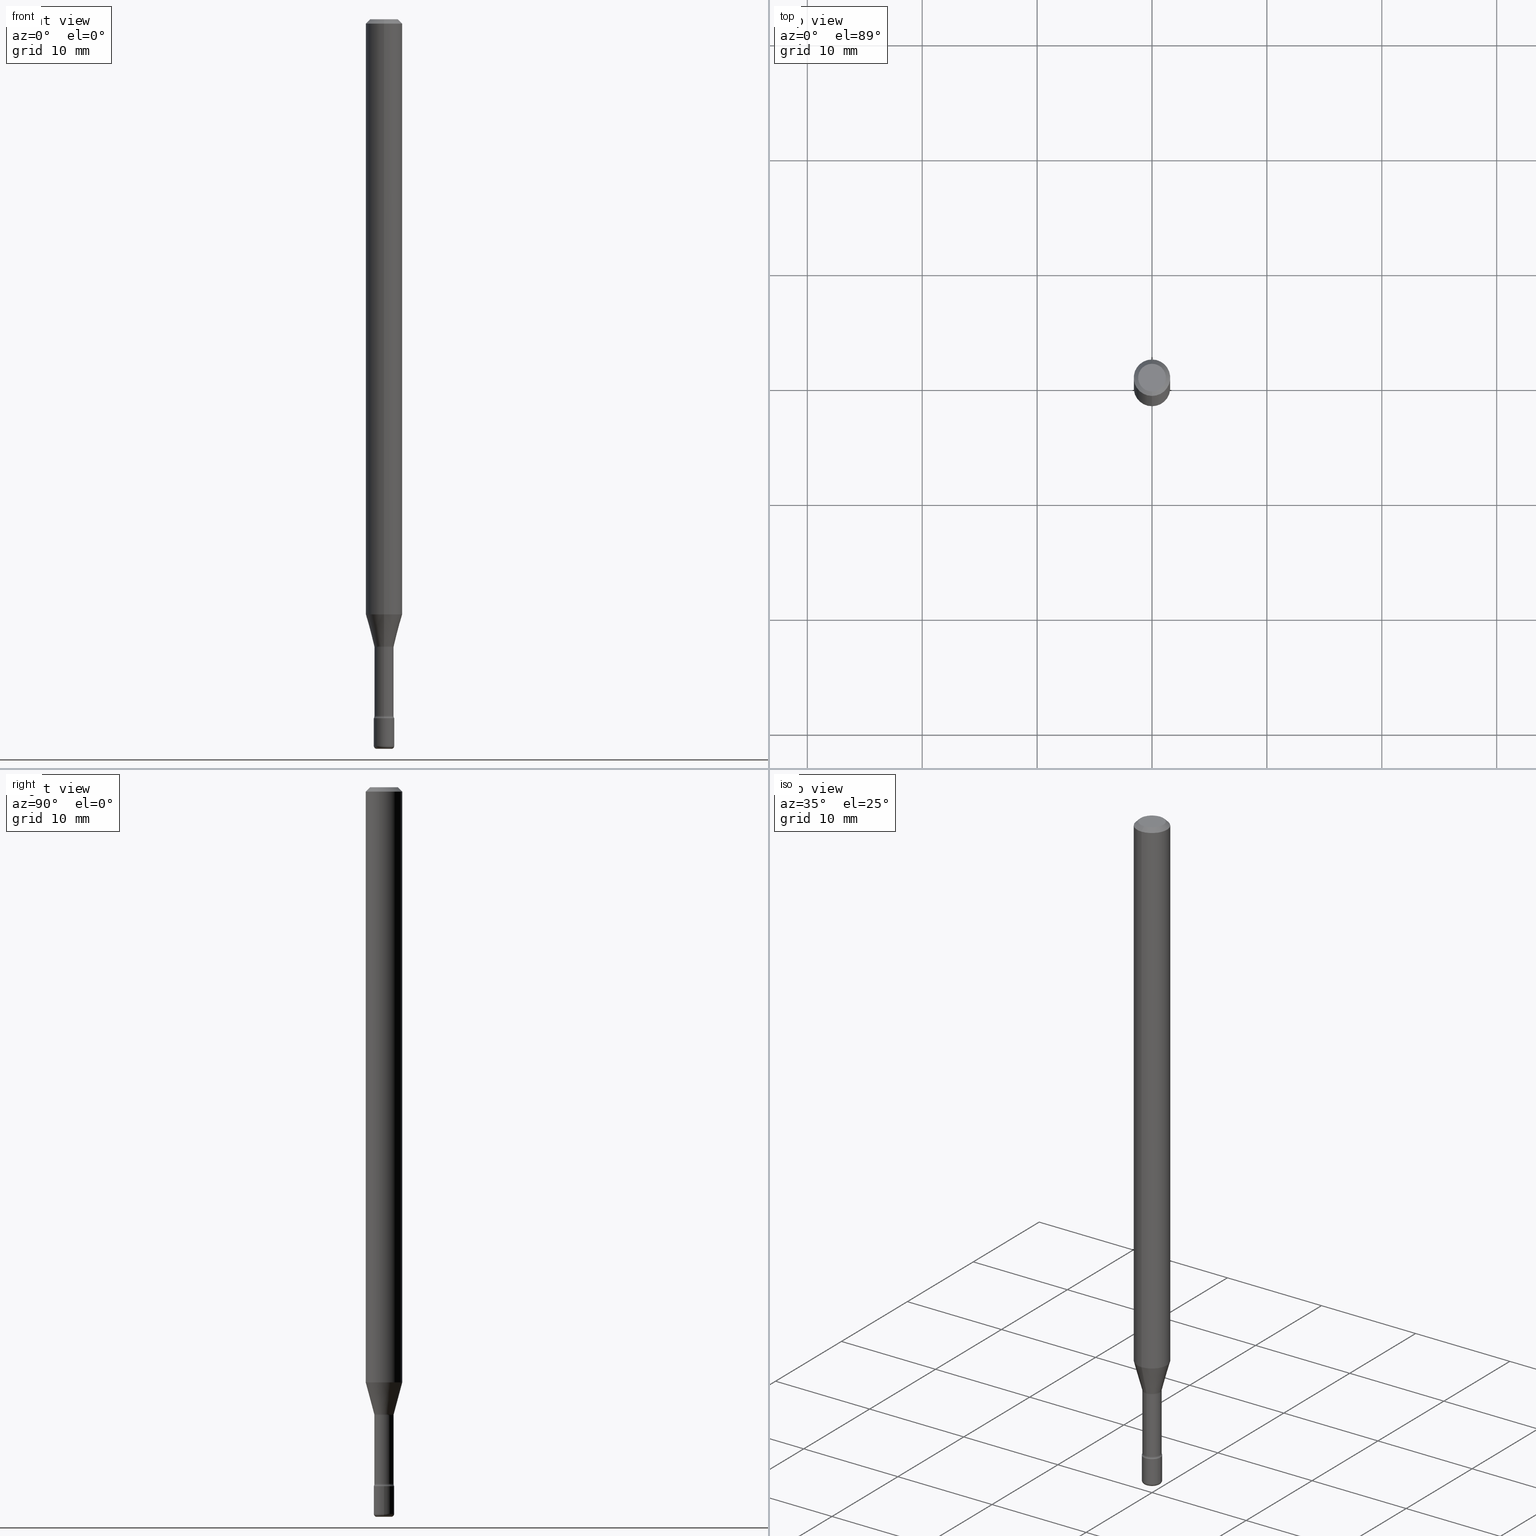
[diagram: canonical four-view strip — front | top / right | iso, engineering-drawing reading convention]
A machine part, canonical four-view strip (front | top / right | iso — engineering-drawing reading convention). The complete STEP part file that produces these views, byte-faithful:
ISO-10303-21;
HEADER;
FILE_DESCRIPTION (( 'STEP AP203' ),
    '1' );
FILE_NAME ('08935.STEP',
    '2024-03-06T20:11:30',
    ( '' ),
    ( '' ),
    'SwSTEP 2.0',
    'SolidWorks 2023',
    '' );
FILE_SCHEMA (( 'CONFIG_CONTROL_DESIGN' ));
ENDSEC;

DATA;
#1 = VERTEX_POINT ( 'NONE', #407 ) ;
#2 = CARTESIAN_POINT ( 'NONE',  ( 0.000000000000000000, 0.000000000000000000, 0.000000000000000000 ) ) ;
#3 = CARTESIAN_POINT ( 'NONE',  ( 2.444036937190778979E-16, 0.03499999999999164196, -2.395000000000000018 ) ) ;
#4 = ORIENTED_EDGE ( 'NONE', *, *, #253, .T. ) ;
#5 = CONICAL_SURFACE ( 'NONE', #372, 0.03341111260566397012, 0.2617993877991496299 ) ;
#6 = CIRCLE ( 'NONE', #59, 0.01500000000000002720 ) ;
#7 = DIRECTION ( 'NONE',  ( -6.982962677686265922E-15, -1.000000000000000000, 0.000000000000000000 ) ) ;
#8 = ADVANCED_FACE ( 'NONE', ( #412 ), #272, .T. ) ;
#9 = ORIENTED_EDGE ( 'NONE', *, *, #502, .F. ) ;
#10 = DIRECTION ( 'NONE',  ( -2.445468806185136597E-29, 3.491481338843145583E-15, 1.000000000000000000 ) ) ;
#11 = ORIENTED_EDGE ( 'NONE', *, *, #89, .T. ) ;
#12 = AXIS2_PLACEMENT_3D ( 'NONE', #313, #418, #538 ) ;
#13 = PERSON_AND_ORGANIZATION_ROLE ( 'classification_officer' ) ;
#14 = TOROIDAL_SURFACE ( 'NONE', #257, 0.04789999999999999813, 0.01500000000000002547 ) ;
#15 = CARTESIAN_POINT ( 'NONE',  ( -4.364351673553912750E-16, -0.06250000000000005551, -0.01499999999999981036 ) ) ;
#16 = EDGE_CURVE ( 'NONE', #1, #203, #183, .T. ) ;
#17 = ADVANCED_FACE ( 'NONE', ( #325 ), #500, .T. ) ;
#18 = PERSON_AND_ORGANIZATION_ROLE ( 'creator' ) ;
#19 = ORIENTED_EDGE ( 'NONE', *, *, #294, .T. ) ;
#20 = ADVANCED_FACE ( 'NONE', ( #50 ), #5, .T. ) ;
#21 = DATE_TIME_ROLE ( 'creation_date' ) ;
#22 = DIRECTION ( 'NONE',  ( -2.445361929537154917E-29, 3.491634392286096321E-15, 1.000000000000000000 ) ) ;
#23 = DIRECTION ( 'NONE',  ( -6.982962677686265922E-15, -1.000000000000000000, 0.000000000000000000 ) ) ;
#24 = PERSON_AND_ORGANIZATION ( #71, #530 ) ;
#25 = AXIS2_PLACEMENT_3D ( 'NONE', #555, #168, #77 ) ;
#26 = CARTESIAN_POINT ( 'NONE',  ( 5.252863624994821305E-29, -7.500353657052325597E-15, -2.148092501787273179 ) ) ;
#27 = DESIGN_CONTEXT ( 'detailed design', #539, 'design' ) ;
#28 = EDGE_CURVE ( 'NONE', #287, #149, #38, .T. ) ;
#29 = DIRECTION ( 'NONE',  ( 4.937700262164548831E-15, 0.7071067811865452413, -0.7071067811865497932 ) ) ;
#30 = CARTESIAN_POINT ( 'NONE',  ( 2.486899575160932672E-16, 0.03499999999999160033, -2.395000000000000018 ) ) ;
#31 = ORIENTED_EDGE ( 'NONE', *, *, #471, .T. ) ;
#32 = CARTESIAN_POINT ( 'NONE',  ( -0.02500000000000000139, -8.498083119685618084E-15, -2.500000000000000000 ) ) ;
#33 = EDGE_LOOP ( 'NONE', ( #19, #535 ) ) ;
#34 = PLANE ( 'NONE',  #293 ) ;
#35 = EDGE_LOOP ( 'NONE', ( #185, #495, #397, #9 ) ) ;
#36 = CC_DESIGN_PERSON_AND_ORGANIZATION_ASSIGNMENT ( #116, #194, ( #351 ) ) ;
#37 = LINE ( 'NONE', #558, #134 ) ;
#38 = CIRCLE ( 'NONE', #323, 0.03290000000000008890 ) ;
#39 = CIRCLE ( 'NONE', #92, 0.04749999999999998668 ) ;
#40 = CARTESIAN_POINT ( 'NONE',  ( 1.745740669422178045E-16, 0.02499999999999127226, -2.500000000000000000 ) ) ;
#41 = ADVANCED_FACE ( 'NONE', ( #78 ), #331, .T. ) ;
#42 = DIRECTION ( 'NONE',  ( -2.445361929537154917E-29, 3.491634392286096321E-15, 1.000000000000000000 ) ) ;
#43 = DIRECTION ( 'NONE',  ( -2.445361929537154917E-29, 3.491634392286096321E-15, 1.000000000000000000 ) ) ;
#44 = PERSON_AND_ORGANIZATION_ROLE ( 'design_owner' ) ;
#45 = EDGE_CURVE ( 'NONE', #1, #173, #563, .T. ) ;
#46 = VECTOR ( 'NONE', #426, 39.37007874015748143 ) ;
#47 = LOCAL_TIME ( 15, 11, 30.00000000000000000, #315 ) ;
#48 = DIRECTION ( 'NONE',  ( -2.445361929537154917E-29, 3.491634392286096321E-15, 1.000000000000000000 ) ) ;
#49 = ORIENTED_EDGE ( 'NONE', *, *, #102, .F. ) ;
#50 = FACE_OUTER_BOUND ( 'NONE', #474, .T. ) ;
#51 = CARTESIAN_POINT ( 'NONE',  ( -1.169113584055446105E-44, 1.669184350826100908E-30, 4.780733988912460139E-16 ) ) ;
#52 = ORIENTED_EDGE ( 'NONE', *, *, #452, .F. ) ;
#53 = CARTESIAN_POINT ( 'NONE',  ( 4.987392185572634863E-29, -7.121297617592497891E-15, -2.039531296095961732 ) ) ;
#54 = ADVANCED_FACE ( 'NONE', ( #456 ), #205, .F. ) ;
#55 = CARTESIAN_POINT ( 'NONE',  ( 3.403499704291464501E-16, 0.04789999999999168534, -2.387345589506696619 ) ) ;
#56 = DIRECTION ( 'NONE',  ( 1.000000000000000000, -7.105427357601001070E-15, 4.926317382906172649E-29 ) ) ;
#57 = CARTESIAN_POINT ( 'NONE',  ( -4.364351673553916201E-16, -0.06250000000000000000, 6.963005484091270833E-16 ) ) ;
#58 = CLOSED_SHELL ( 'NONE', ( #506, #17, #107, #41, #130, #20, #187, #8, #268, #54, #164, #211, #283, #262 ) ) ;
#59 = AXIS2_PLACEMENT_3D ( 'NONE', #403, #56, #93 ) ;
#60 = ORIENTED_EDGE ( 'NONE', *, *, #488, .F. ) ;
#61 = EDGE_LOOP ( 'NONE', ( #154, #244, #532, #198 ) ) ;
#62 = DIRECTION ( 'NONE',  ( -6.982962677686265922E-15, -1.000000000000000000, 0.000000000000000000 ) ) ;
#63 = CIRCLE ( 'NONE', #468, 0.01499999999999992485 ) ;
#64 = DIRECTION ( 'NONE',  ( -2.445361929537154917E-29, 3.491634392286096321E-15, 1.000000000000000000 ) ) ;
#65 = ORIENTED_EDGE ( 'NONE', *, *, #398, .T. ) ;
#66 = CARTESIAN_POINT ( 'NONE',  ( 4.440892098501128074E-16, 0.06249999999999995837, -0.01500000000000024578 ) ) ;
#67 = VERTEX_POINT ( 'NONE', #66 ) ;
#68 = ORIENTED_EDGE ( 'NONE', *, *, #215, .F. ) ;
#69 = ORIENTED_EDGE ( 'NONE', *, *, #359, .T. ) ;
#70 = CYLINDRICAL_SURFACE ( 'NONE', #267, 0.06250000000000000000 ) ;
#71 = PERSON ( 'UNSPECIFIED', 'UNSPECIFIED', 'UNSPECIFIED', ('UNSPECIFIED'), ('UNSPECIFIED'), ('UNSPECIFIED') ) ;
#72 = CARTESIAN_POINT ( 'NONE',  ( 3.668042894305739311E-31, -5.237451588429154292E-17, -0.01500000000000002720 ) ) ;
#73 = CIRCLE ( 'NONE', #393, 0.03500000000000000333 ) ;
#74 = CC_DESIGN_PERSON_AND_ORGANIZATION_ASSIGNMENT ( #406, #44, ( #318 ) ) ;
#75 = DIRECTION ( 'NONE',  ( -2.445361929537154917E-29, 3.491634392286096321E-15, 1.000000000000000000 ) ) ;
#76 = AXIS2_PLACEMENT_3D ( 'NONE', #201, #233, #62 ) ;
#77 = DIRECTION ( 'NONE',  ( 1.000000000000000000, -6.982962677686276966E-15, 0.000000000000000000 ) ) ;
#78 = FACE_OUTER_BOUND ( 'NONE', #556, .T. ) ;
#79 = CARTESIAN_POINT ( 'NONE',  ( 6.617399431615516844E-46, -9.463332413969183730E-32, -2.708191715859933263E-17 ) ) ;
#80 = EDGE_LOOP ( 'NONE', ( #362, #355, #249, #334 ) ) ;
#81 = DIRECTION ( 'NONE',  ( -2.445468806185136597E-29, 3.491481338843145583E-15, 1.000000000000000000 ) ) ;
#82 = AXIS2_PLACEMENT_3D ( 'NONE', #513, #376, #124 ) ;
#83 = CIRCLE ( 'NONE', #25, 0.03500000000000000333 ) ;
#84 = ORIENTED_EDGE ( 'NONE', *, *, #279, .T. ) ;
#85 = CARTESIAN_POINT ( 'NONE',  ( -1.169113584055446105E-44, 1.669184350826100908E-30, 4.780733988912460139E-16 ) ) ;
#86 = VERTEX_POINT ( 'NONE', #544 ) ;
#87 = COORDINATED_UNIVERSAL_TIME_OFFSET ( 5, 0, .BEHIND. ) ;
#88 = APPROVAL ( #150, 'UNSPECIFIED' ) ;
#89 = EDGE_CURVE ( 'NONE', #287, #462, #63, .T. ) ;
#90 = ORIENTED_EDGE ( 'NONE', *, *, #204, .F. ) ;
#91 = AXIS2_PLACEMENT_3D ( 'NONE', #559, #172, #23 ) ;
#92 = AXIS2_PLACEMENT_3D ( 'NONE', #79, #75, #517 ) ;
#93 = DIRECTION ( 'NONE',  ( 7.105427357601001859E-15, 1.000000000000000000, 0.000000000000000000 ) ) ;
#94 = ORIENTED_EDGE ( 'NONE', *, *, #215, .T. ) ;
#95 = DIRECTION ( 'NONE',  ( -6.982962677686265922E-15, -1.000000000000000000, 3.491634392286096321E-15 ) ) ;
#96 = VERTEX_POINT ( 'NONE', #491 ) ;
#97 = CARTESIAN_POINT ( 'NONE',  ( -3.344839122611139354E-16, -0.04790000000000835256, -2.387345589506696175 ) ) ;
#98 = CARTESIAN_POINT ( 'NONE',  ( -4.364351673553420205E-16, -0.06250000000000714706, -2.039531296095961288 ) ) ;
#99 = DIRECTION ( 'NONE',  ( -2.445468806185136597E-29, 3.491481338843145583E-15, 1.000000000000000000 ) ) ;
#100 = ORIENTED_EDGE ( 'NONE', *, *, #105, .T. ) ;
#101 = MECHANICAL_CONTEXT ( 'NONE', #344, 'mechanical' ) ;
#102 = EDGE_CURVE ( 'NONE', #96, #137, #457, .T. ) ;
#103 = CONICAL_SURFACE ( 'NONE', #494, 0.06250000000000000000, 0.7853981633974485010 ) ;
#104 = FACE_OUTER_BOUND ( 'NONE', #298, .T. ) ;
#105 = EDGE_CURVE ( 'NONE', #173, #217, #352, .T. ) ;
#106 = ORIENTED_EDGE ( 'NONE', *, *, #479, .T. ) ;
#107 = ADVANCED_FACE ( 'NONE', ( #176 ), #476, .F. ) ;
#108 = ORIENTED_EDGE ( 'NONE', *, *, #271, .F. ) ;
#109 = AXIS2_PLACEMENT_3D ( 'NONE', #115, #10, #367 ) ;
#110 = DATE_AND_TIME ( #288, #566 ) ;
#111 = AXIS2_PLACEMENT_3D ( 'NONE', #53, #354, #442 ) ;
#112 = ORIENTED_EDGE ( 'NONE', *, *, #498, .F. ) ;
#113 = CARTESIAN_POINT ( 'NONE',  ( -1.169113584055446105E-44, 1.669184350826100908E-30, 4.780733988912460139E-16 ) ) ;
#114 = DIRECTION ( 'NONE',  ( -2.445361929537154917E-29, 3.491634392286096321E-15, 1.000000000000000000 ) ) ;
#115 = CARTESIAN_POINT ( 'NONE',  ( 0.000000000000000000, 0.000000000000000000, 0.000000000000000000 ) ) ;
#116 = PERSON_AND_ORGANIZATION ( #71, #530 ) ;
#117 = EDGE_LOOP ( 'NONE', ( #296, #328, #466, #90 ) ) ;
#118 = DIRECTION ( 'NONE',  ( -6.982962677686265133E-15, -1.000000000000000000, 3.491634392286094348E-15 ) ) ;
#119 = CARTESIAN_POINT ( 'NONE',  ( -2.297394720958204179E-16, -0.03290000000000842945, -2.387345589506696619 ) ) ;
#120 = DIRECTION ( 'NONE',  ( 1.000000000000000000, -6.982962677686276966E-15, 0.000000000000000000 ) ) ;
#121 = TOROIDAL_SURFACE ( 'NONE', #448, 0.02500000000000000139, 0.01000000000000008521 ) ;
#122 = CARTESIAN_POINT ( 'NONE',  ( 5.837924017228111976E-29, -8.335737966594106856E-15, -2.387345589506696619 ) ) ;
#123 = ORIENTED_EDGE ( 'NONE', *, *, #452, .T. ) ;
#124 = DIRECTION ( 'NONE',  ( 6.982962677686265922E-15, 1.000000000000000000, -3.491634392286096321E-15 ) ) ;
#125 = FACE_OUTER_BOUND ( 'NONE', #80, .T. ) ;
#126 = ORIENTED_EDGE ( 'NONE', *, *, #527, .F. ) ;
#127 = EDGE_CURVE ( 'NONE', #285, #86, #316, .T. ) ;
#128 = CARTESIAN_POINT ( 'NONE',  ( 5.838179168722291637E-29, -8.335372575132119928E-15, -2.387345589506696619 ) ) ;
#129 = ADVANCED_FACE ( 'NONE', ( #528 ), #135, .T. ) ;
#130 = ADVANCED_FACE ( 'NONE', ( #264 ), #70, .T. ) ;
#131 = FACE_OUTER_BOUND ( 'NONE', #61, .T. ) ;
#132 = DIRECTION ( 'NONE',  ( -2.445361929537154917E-29, 3.491634392286096321E-15, 1.000000000000000000 ) ) ;
#133 = CIRCLE ( 'NONE', #216, 0.01500000000000002720 ) ;
#134 = VECTOR ( 'NONE', #132, 39.37007874015748143 ) ;
#135 = PLANE ( 'NONE',  #550 ) ;
#136 = PERSON_AND_ORGANIZATION ( #71, #530 ) ;
#137 = VERTEX_POINT ( 'NONE', #32 ) ;
#138 = CARTESIAN_POINT ( 'NONE',  ( 2.374002335562249758E-16, 0.03341111260565646918, -2.148092501787273179 ) ) ;
#139 =( NAMED_UNIT ( * ) PLANE_ANGLE_UNIT ( ) SI_UNIT ( $, .RADIAN. ) );
#140 = DIRECTION ( 'NONE',  ( 1.000000000000000000, -7.105427357601001070E-15, 4.926317382906172649E-29 ) ) ;
#141 = DIRECTION ( 'NONE',  ( -6.982962677686265922E-15, -1.000000000000000000, 3.491634392286095926E-15 ) ) ;
#142 = DIRECTION ( 'NONE',  ( -1.000000000000000000, 6.982962677686265922E-15, -4.883557194083112340E-29 ) ) ;
#143 = VECTOR ( 'NONE', #22, 39.37007874015748143 ) ;
#144 = FACE_OUTER_BOUND ( 'NONE', #516, .T. ) ;
#145 = EDGE_LOOP ( 'NONE', ( #49, #503 ) ) ;
#146 = CARTESIAN_POINT ( 'NONE',  ( 6.089217327400989947E-29, -8.693788533719431716E-15, -2.489999999999999769 ) ) ;
#147 = CARTESIAN_POINT ( 'NONE',  ( -4.287811248607203282E-16, -0.06250000000000005551, -0.01499999999999981036 ) ) ;
#148 = DIRECTION ( 'NONE',  ( -2.445361929537154917E-29, 3.491634392286096321E-15, 1.000000000000000000 ) ) ;
#149 = VERTEX_POINT ( 'NONE', #119 ) ;
#150 = APPROVAL_STATUS ( 'not_yet_approved' ) ;
#151 = CONICAL_SURFACE ( 'NONE', #91, 0.03341111260566397012, 0.2617993877991496299 ) ;
#152 = AXIS2_PLACEMENT_3D ( 'NONE', #336, #209, #478 ) ;
#153 = EDGE_LOOP ( 'NONE', ( #557, #265, #373, #484 ) ) ;
#154 = ORIENTED_EDGE ( 'NONE', *, *, #127, .T. ) ;
#155 = UNCERTAINTY_MEASURE_WITH_UNIT (LENGTH_MEASURE( 1.000000000000000082E-05 ), #308, 'distance_accuracy_value', 'NONE');
#156 = DIRECTION ( 'NONE',  ( -6.982962677686265922E-15, -1.000000000000000000, 3.483106191921935554E-15 ) ) ;
#157 = ORIENTED_EDGE ( 'NONE', *, *, #238, .T. ) ;
#158 = DATE_AND_TIME ( #231, #199 ) ;
#159 = APPROVAL_ROLE ( '' ) ;
#160 = EDGE_CURVE ( 'NONE', #462, #381, #73, .T. ) ;
#161 = CARTESIAN_POINT ( 'NONE',  ( 3.407447217031687684E-16, 0.03341111260565646918, -2.148092501787273179 ) ) ;
#162 = PERSON_AND_ORGANIZATION ( #71, #530 ) ;
#163 = CIRCLE ( 'NONE', #225, 0.03500000000000000333 ) ;
#164 = ADVANCED_FACE ( 'NONE', ( #391 ), #349, .F. ) ;
#165 = DIRECTION ( 'NONE',  ( -2.445361929537154917E-29, 3.491634392286096321E-15, 1.000000000000000000 ) ) ;
#166 = EDGE_CURVE ( 'NONE', #96, #285, #511, .T. ) ;
#167 = AXIS2_PLACEMENT_3D ( 'NONE', #460, #545, #156 ) ;
#168 = DIRECTION ( 'NONE',  ( -2.445468806185136597E-29, 3.491481338843145583E-15, 1.000000000000000000 ) ) ;
#169 = ORIENTED_EDGE ( 'NONE', *, *, #305, .F. ) ;
#170 = AXIS2_PLACEMENT_3D ( 'NONE', #435, #341, #465 ) ;
#171 = DIRECTION ( 'NONE',  ( 1.000000000000000000, -6.982962677686265922E-15, 4.876176775795936353E-29 ) ) ;
#172 = DIRECTION ( 'NONE',  ( -2.445361929537154917E-29, 3.491634392286096321E-15, 1.000000000000000000 ) ) ;
#173 = VERTEX_POINT ( 'NONE', #161 ) ;
#174 = DIRECTION ( 'NONE',  ( -6.982962677686265922E-15, -1.000000000000000000, 4.370956789862821150E-15 ) ) ;
#175 = PRODUCT_DEFINITION ( 'UNKNOWN', '', #351, #27 ) ;
#176 = FACE_OUTER_BOUND ( 'NONE', #346, .T. ) ;
#177 = CARTESIAN_POINT ( 'NONE',  ( -2.297394720958784485E-16, -0.03290000000000004726, 5.929481703974587272E-16 ) ) ;
#178 = AXIS2_PLACEMENT_3D ( 'NONE', #434, #261, #174 ) ;
#179 = DIRECTION ( 'NONE',  ( -6.982962677686265133E-15, -1.000000000000000000, 3.491634392286096321E-15 ) ) ;
#180 = DIRECTION ( 'NONE',  ( -6.982962677686265922E-15, -1.000000000000000000, 3.491634392286096321E-15 ) ) ;
#181 = CIRCLE ( 'NONE', #76, 0.03341111260566397012 ) ;
#182 = AXIS2_PLACEMENT_3D ( 'NONE', #410, #360, #188 ) ;
#183 = LINE ( 'NONE', #353, #529 ) ;
#184 = VERTEX_POINT ( 'NONE', #365 ) ;
#185 = ORIENTED_EDGE ( 'NONE', *, *, #105, .F. ) ;
#186 = CARTESIAN_POINT ( 'NONE',  ( -3.344839122611194574E-16, -0.04790000000000750602, -2.151974787463811101 ) ) ;
#187 = ADVANCED_FACE ( 'NONE', ( #387 ), #151, .T. ) ;
#188 = DIRECTION ( 'NONE',  ( 1.000000000000000000, -6.982962677686254878E-15, 0.000000000000000000 ) ) ;
#189 = AXIS2_PLACEMENT_3D ( 'NONE', #303, #259, #480 ) ;
#190 = VECTOR ( 'NONE', #307, 39.37007874015748143 ) ;
#191 = MANIFOLD_SOLID_BREP ( 'Body-Move/Copy2[2]', #58 ) ;
#192 = EDGE_LOOP ( 'NONE', ( #379, #368, #370, #330 ) ) ;
#193 = CARTESIAN_POINT ( 'NONE',  ( -1.169113584055446105E-44, 1.669184350826100908E-30, 4.780733988912460139E-16 ) ) ;
#194 = PERSON_AND_ORGANIZATION_ROLE ( 'design_supplier' ) ;
#195 = ORIENTED_EDGE ( 'NONE', *, *, #166, .T. ) ;
#196 = PERSON_AND_ORGANIZATION_ROLE ( 'creator' ) ;
#197 = EDGE_CURVE ( 'NONE', #67, #252, #214, .T. ) ;
#198 = ORIENTED_EDGE ( 'NONE', *, *, #359, .F. ) ;
#199 = LOCAL_TIME ( 15, 11, 30.00000000000000000, #87 ) ;
#200 = ORIENTED_EDGE ( 'NONE', *, *, #197, .T. ) ;
#201 = CARTESIAN_POINT ( 'NONE',  ( 5.252863624994821305E-29, -7.500353657052325597E-15, -2.148092501787273179 ) ) ;
#202 = CARTESIAN_POINT ( 'NONE',  ( 2.412292587906125932E-16, 0.03289999999999175528, -2.387345589506696619 ) ) ;
#203 = VERTEX_POINT ( 'NONE', #98 ) ;
#204 = EDGE_CURVE ( 'NONE', #203, #252, #274, .T. ) ;
#205 = PLANE ( 'NONE',  #82 ) ;
#206 = DIRECTION ( 'NONE',  ( 2.438088387897960049E-29, -3.491481338843145188E-15, -1.000000000000000000 ) ) ;
#207 = EDGE_LOOP ( 'NONE', ( #112, #508, #157, #200 ) ) ;
#208 = CARTESIAN_POINT ( 'NONE',  ( 5.262357218587814766E-29, -7.513909179241206532E-15, -2.151974787463811101 ) ) ;
#209 = DIRECTION ( 'NONE',  ( -2.445468806185136597E-29, 3.491481338843145583E-15, 1.000000000000000000 ) ) ;
#210 = LINE ( 'NONE', #177, #309 ) ;
#211 = ADVANCED_FACE ( 'NONE', ( #429 ), #540, .F. ) ;
#212 = DIRECTION ( 'NONE',  ( -6.982962677686265133E-15, -1.000000000000000000, 3.491634392286096321E-15 ) ) ;
#213 = DIRECTION ( 'NONE',  ( -6.982962677686265922E-15, -1.000000000000000000, 0.000000000000000000 ) ) ;
#214 = CIRCLE ( 'NONE', #348, 0.06250000000000000000 ) ;
#215 = EDGE_CURVE ( 'NONE', #287, #184, #390, .T. ) ;
#216 = AXIS2_PLACEMENT_3D ( 'NONE', #186, #142, #492 ) ;
#217 = VERTEX_POINT ( 'NONE', #510 ) ;
#218 = DIRECTION ( 'NONE',  ( 1.000000000000000000, -6.982962677686259611E-15, 4.883557194083110659E-29 ) ) ;
#219 = ADVANCED_FACE ( 'NONE', ( #230 ), #413, .T. ) ;
#220 = DIRECTION ( 'NONE',  ( 1.000000000000000000, -6.982962677686254878E-15, 0.000000000000000000 ) ) ;
#221 = DIRECTION ( 'NONE',  ( -6.982962677686265133E-15, -1.000000000000000000, 0.000000000000000000 ) ) ;
#222 = EDGE_CURVE ( 'NONE', #252, #67, #431, .T. ) ;
#223 =( NAMED_UNIT ( * ) SI_UNIT ( $, .STERADIAN. ) SOLID_ANGLE_UNIT ( ) );
#224 = AXIS2_PLACEMENT_3D ( 'NONE', #311, #489, #95 ) ;
#225 = AXIS2_PLACEMENT_3D ( 'NONE', #472, #386, #120 ) ;
#226 = EDGE_LOOP ( 'NONE', ( #65, #123 ) ) ;
#227 = DIRECTION ( 'NONE',  ( -6.982962677686266711E-15, -1.000000000000000000, 0.000000000000000000 ) ) ;
#228 = PRODUCT_RELATED_PRODUCT_CATEGORY ( 'detail', '', ( #318 ) ) ;
#229 = DATE_AND_TIME ( #501, #286 ) ;
#230 = FACE_OUTER_BOUND ( 'NONE', #493, .T. ) ;
#231 = CALENDAR_DATE ( 2024, 6, 3 ) ;
#232 = CARTESIAN_POINT ( 'NONE',  ( 5.837924017228111976E-29, -8.335737966594106856E-15, -2.387345589506696619 ) ) ;
#233 = DIRECTION ( 'NONE',  ( -2.445361929537154917E-29, 3.491634392286096321E-15, 1.000000000000000000 ) ) ;
#234 = VECTOR ( 'NONE', #29, 39.37007874015748143 ) ;
#235 = CIRCLE ( 'NONE', #541, 0.01499999999999992485 ) ;
#236 = APPROVAL_DATE_TIME ( #158, #496 ) ;
#237 = EDGE_LOOP ( 'NONE', ( #84, #94, #428, #523 ) ) ;
#238 = EDGE_CURVE ( 'NONE', #250, #67, #377, .T. ) ;
#239 = DATE_AND_TIME ( #420, #542 ) ;
#240 = ORIENTED_EDGE ( 'NONE', *, *, #399, .F. ) ;
#241 = EDGE_CURVE ( 'NONE', #173, #1, #181, .T. ) ;
#242 = EDGE_LOOP ( 'NONE', ( #108, #343 ) ) ;
#243 = DIRECTION ( 'NONE',  ( -6.982962677686265133E-15, -1.000000000000000000, 3.491634392286094348E-15 ) ) ;
#244 = ORIENTED_EDGE ( 'NONE', *, *, #388, .T. ) ;
#245 = CIRCLE ( 'NONE', #449, 0.04749999999999998668 ) ;
#246 = SECURITY_CLASSIFICATION ( '', '', #414 ) ;
#247 = CARTESIAN_POINT ( 'NONE',  ( 0.000000000000000000, 0.000000000000000000, 0.000000000000000000 ) ) ;
#248 = DIRECTION ( 'NONE',  ( -2.445468806185136877E-29, 3.491481338843145188E-15, 1.000000000000000000 ) ) ;
#249 = ORIENTED_EDGE ( 'NONE', *, *, #127, .F. ) ;
#250 = VERTEX_POINT ( 'NONE', #543 ) ;
#251 = DIRECTION ( 'NONE',  ( -6.982962677686265133E-15, -1.000000000000000000, 3.491634392286096715E-15 ) ) ;
#252 = VERTEX_POINT ( 'NONE', #15 ) ;
#253 = EDGE_CURVE ( 'NONE', #137, #96, #269, .T. ) ;
#254 = CLOSED_SHELL ( 'NONE', ( #374, #423, #129, #409, #572, #219 ) ) ;
#255 = LINE ( 'NONE', #519, #332 ) ;
#256 = DIRECTION ( 'NONE',  ( -2.445361929537154917E-29, 3.491634392286096321E-15, 1.000000000000000000 ) ) ;
#257 = AXIS2_PLACEMENT_3D ( 'NONE', #467, #64, #212 ) ;
#258 = APPROVAL_PERSON_ORGANIZATION ( #369, #289, #319 ) ;
#259 = DIRECTION ( 'NONE',  ( 2.445361929537154917E-29, -3.491634392286096321E-15, -1.000000000000000000 ) ) ;
#260 = ORIENTED_EDGE ( 'NONE', *, *, #45, .F. ) ;
#261 = DIRECTION ( 'NONE',  ( -2.445361929537154917E-29, 3.491634392286096321E-15, 1.000000000000000000 ) ) ;
#262 = ADVANCED_FACE ( 'NONE', ( #104 ), #14, .F. ) ;
#263 = DIRECTION ( 'NONE',  ( -6.982962677686266711E-15, -1.000000000000000000, 0.000000000000000000 ) ) ;
#264 = FACE_OUTER_BOUND ( 'NONE', #117, .T. ) ;
#265 = ORIENTED_EDGE ( 'NONE', *, *, #527, .T. ) ;
#266 = DIRECTION ( 'NONE',  ( -2.445468806185136597E-29, 3.491481338843145583E-15, 1.000000000000000000 ) ) ;
#267 = AXIS2_PLACEMENT_3D ( 'NONE', #113, #504, #375 ) ;
#268 = ADVANCED_FACE ( 'NONE', ( #320 ), #103, .T. ) ;
#269 = CIRCLE ( 'NONE', #182, 0.02500000000000000139 ) ;
#270 = DIRECTION ( 'NONE',  ( -2.445468806185136597E-29, 3.491481338843145583E-15, 1.000000000000000000 ) ) ;
#271 = EDGE_CURVE ( 'NONE', #381, #462, #324, .T. ) ;
#272 = CYLINDRICAL_SURFACE ( 'NONE', #276, 0.06250000000000000000 ) ;
#273 = FACE_OUTER_BOUND ( 'NONE', #153, .T. ) ;
#274 = LINE ( 'NONE', #57, #143 ) ;
#275 = EDGE_LOOP ( 'NONE', ( #402, #280, #356, #473 ) ) ;
#276 = AXIS2_PLACEMENT_3D ( 'NONE', #51, #443, #141 ) ;
#277 = AXIS2_PLACEMENT_3D ( 'NONE', #569, #148, #7 ) ;
#278 = APPROVAL_DATE_TIME ( #548, #289 ) ;
#279 = EDGE_CURVE ( 'NONE', #149, #287, #512, .T. ) ;
#280 = ORIENTED_EDGE ( 'NONE', *, *, #279, .F. ) ;
#281 = ORIENTED_EDGE ( 'NONE', *, *, #399, .T. ) ;
#282 = CC_DESIGN_DATE_AND_TIME_ASSIGNMENT ( #239, #21, ( #175 ) ) ;
#283 = ADVANCED_FACE ( 'NONE', ( #338 ), #554, .T. ) ;
#284 = AXIS2_PLACEMENT_3D ( 'NONE', #3, #520, #180 ) ;
#285 = VERTEX_POINT ( 'NONE', #507 ) ;
#286 = LOCAL_TIME ( 15, 11, 30.00000000000000000, #497 ) ;
#287 = VERTEX_POINT ( 'NONE', #202 ) ;
#288 = CALENDAR_DATE ( 2024, 6, 3 ) ;
#289 = APPROVAL ( #546, 'UNSPECIFIED' ) ;
#290 = DIRECTION ( 'NONE',  ( -6.982962677686265133E-15, -1.000000000000000000, 0.000000000000000000 ) ) ;
#291 = CARTESIAN_POINT ( 'NONE',  ( 5.856641821241486538E-29, -8.362464369525200210E-15, -2.395000000000000018 ) ) ;
#292 = AXIS2_PLACEMENT_3D ( 'NONE', #128, #256, #451 ) ;
#293 = AXIS2_PLACEMENT_3D ( 'NONE', #40, #206, #430 ) ;
#294 = EDGE_CURVE ( 'NONE', #411, #505, #83, .T. ) ;
#295 = LINE ( 'NONE', #297, #46 ) ;
#296 = ORIENTED_EDGE ( 'NONE', *, *, #305, .T. ) ;
#297 = CARTESIAN_POINT ( 'NONE',  ( -0.03500000000000000333, 2.486899575160350887E-16, -1.721627281589217108E-30 ) ) ;
#298 = EDGE_LOOP ( 'NONE', ( #126, #260, #31, #106 ) ) ;
#299 = ORIENTED_EDGE ( 'NONE', *, *, #366, .T. ) ;
#300 = DIRECTION ( 'NONE',  ( -6.982962677686266711E-15, -1.000000000000000000, 0.000000000000000000 ) ) ;
#301 = ORIENTED_EDGE ( 'NONE', *, *, #388, .F. ) ;
#302 = AXIS2_PLACEMENT_3D ( 'NONE', #440, #531, #179 ) ;
#303 = CARTESIAN_POINT ( 'NONE',  ( 3.668042894305739311E-31, -5.237451588429154292E-17, -0.01500000000000002720 ) ) ;
#304 = APPROVAL_STATUS ( 'not_yet_approved' ) ;
#305 = EDGE_CURVE ( 'NONE', #203, #217, #405, .T. ) ;
#306 = DIRECTION ( 'NONE',  ( 1.000000000000000000, -6.982962677686276966E-15, 0.000000000000000000 ) ) ;
#307 = DIRECTION ( 'NONE',  ( -4.851104656540965064E-15, -0.7071067811865501263, -0.7071067811865449082 ) ) ;
#308 =( CONVERSION_BASED_UNIT ( 'INCH', #490 ) LENGTH_UNIT ( ) NAMED_UNIT ( #322 ) );
#309 = VECTOR ( 'NONE', #165, 39.37007874015748143 ) ;
#310 = CC_DESIGN_APPROVAL ( #88, ( #246 ) ) ;
#311 = CARTESIAN_POINT ( 'NONE',  ( 5.838179168722291637E-29, -8.335372575132119928E-15, -2.387345589506696619 ) ) ;
#312 = CARTESIAN_POINT ( 'NONE',  ( 5.262357218587814766E-29, -7.513909179241206532E-15, -2.151974787463811101 ) ) ;
#313 = CARTESIAN_POINT ( 'NONE',  ( 0.02500000000000000139, -8.868362600661588384E-15, -2.489999999999999769 ) ) ;
#314 = CARTESIAN_POINT ( 'NONE',  ( 2.337685600650732477E-16, 0.03290000000000004726, 3.631986273850333500E-16 ) ) ;
#315 = COORDINATED_UNIVERSAL_TIME_OFFSET ( 5, 0, .BEHIND. ) ;
#316 = CIRCLE ( 'NONE', #438, 0.03500000000000000333 ) ;
#317 = ORIENTED_EDGE ( 'NONE', *, *, #28, .T. ) ;
#318 = PRODUCT ( '08935', '08935', '', ( #101 ) ) ;
#319 = APPROVAL_ROLE ( '' ) ;
#320 = FACE_OUTER_BOUND ( 'NONE', #207, .T. ) ;
#321 = PRODUCT_DEFINITION_SHAPE ( 'NONE', 'NONE',  #175 ) ;
#322 = DIMENSIONAL_EXPONENTS ( 1.000000000000000000, 0.000000000000000000, 0.000000000000000000, 0.000000000000000000, 0.000000000000000000, 0.000000000000000000, 0.000000000000000000 ) ;
#323 = AXIS2_PLACEMENT_3D ( 'NONE', #122, #345, #263 ) ;
#324 = CIRCLE ( 'NONE', #277, 0.03500000000000000333 ) ;
#325 = FACE_OUTER_BOUND ( 'NONE', #237, .T. ) ;
#326 = CC_DESIGN_APPROVAL ( #289, ( #351 ) ) ;
#327 = COORDINATED_UNIVERSAL_TIME_OFFSET ( 5, 0, .BEHIND. ) ;
#328 = ORIENTED_EDGE ( 'NONE', *, *, #384, .T. ) ;
#329 = DIRECTION ( 'NONE',  ( -2.445468806185136597E-29, 3.491481338843145583E-15, 1.000000000000000000 ) ) ;
#330 = ORIENTED_EDGE ( 'NONE', *, *, #197, .F. ) ;
#331 = CONICAL_SURFACE ( 'NONE', #189, 0.06250000000000000000, 0.7853981633974485010 ) ;
#332 = VECTOR ( 'NONE', #248, 39.37007874015748143 ) ;
#333 = CARTESIAN_POINT ( 'NONE',  ( 6.617399431615516844E-46, -9.463332413969183730E-32, -2.708191715859933263E-17 ) ) ;
#334 = ORIENTED_EDGE ( 'NONE', *, *, #166, .F. ) ;
#335 = EDGE_LOOP ( 'NONE', ( #68, #317, #299, #395 ) ) ;
#336 = CARTESIAN_POINT ( 'NONE',  ( 6.089217327400989947E-29, -8.693788533719431716E-15, -2.489999999999999769 ) ) ;
#337 = ORIENTED_EDGE ( 'NONE', *, *, #498, .T. ) ;
#338 = FACE_OUTER_BOUND ( 'NONE', #335, .T. ) ;
#339 = AXIS2_PLACEMENT_3D ( 'NONE', #193, #114, #243 ) ;
#340 = AXIS2_PLACEMENT_3D ( 'NONE', #378, #81, #470 ) ;
#341 = DIRECTION ( 'NONE',  ( 7.105427357601001859E-15, 1.000000000000000000, -3.491481338843145583E-15 ) ) ;
#342 = EDGE_CURVE ( 'NONE', #505, #411, #163, .T. ) ;
#343 = ORIENTED_EDGE ( 'NONE', *, *, #160, .F. ) ;
#344 = APPLICATION_CONTEXT ( 'configuration controlled 3d designs of mechanical parts and assemblies' ) ;
#345 = DIRECTION ( 'NONE',  ( -2.445361929537154917E-29, 3.491634392286096321E-15, 1.000000000000000000 ) ) ;
#346 = EDGE_LOOP ( 'NONE', ( #382, #11, #371, #60 ) ) ;
#347 = APPLICATION_PROTOCOL_DEFINITION ( 'international standard', 'config_control_design', 1994, #344 ) ;
#348 = AXIS2_PLACEMENT_3D ( 'NONE', #72, #450, #358 ) ;
#349 = PLANE ( 'NONE',  #284 ) ;
#350 = AXIS2_PLACEMENT_3D ( 'NONE', #312, #394, #221 ) ;
#351 = PRODUCT_DEFINITION_FORMATION_WITH_SPECIFIED_SOURCE ( 'ANY', '', #318, .NOT_KNOWN. ) ;
#352 = LINE ( 'NONE', #138, #383 ) ;
#353 = CARTESIAN_POINT ( 'NONE',  ( -2.333085523452720854E-16, -0.03341111260567147107, -2.148092501787273179 ) ) ;
#354 = DIRECTION ( 'NONE',  ( -2.445361929537154917E-29, 3.491634392286096321E-15, 1.000000000000000000 ) ) ;
#355 = ORIENTED_EDGE ( 'NONE', *, *, #464, .T. ) ;
#356 = ORIENTED_EDGE ( 'NONE', *, *, #488, .T. ) ;
#357 = PERSON_AND_ORGANIZATION ( #71, #530 ) ;
#358 = DIRECTION ( 'NONE',  ( -6.982962677686265922E-15, -1.000000000000000000, 3.483106191921935554E-15 ) ) ;
#359 = EDGE_CURVE ( 'NONE', #285, #411, #255, .T. ) ;
#360 = DIRECTION ( 'NONE',  ( -2.445468806185136597E-29, 3.491481338843145583E-15, 1.000000000000000000 ) ) ;
#361 = ADVANCED_BREP_SHAPE_REPRESENTATION ( '08935', ( #571, #191, #458 ), #439 ) ;
#362 = ORIENTED_EDGE ( 'NONE', *, *, #102, .T. ) ;
#363 = VECTOR ( 'NONE', #455, 39.37007874015748143 ) ;
#364 = CIRCLE ( 'NONE', #111, 0.06250000000000000000 ) ;
#365 = CARTESIAN_POINT ( 'NONE',  ( 2.337685600651315248E-16, 0.03289999999999248387, -2.151974787463811101 ) ) ;
#366 = EDGE_CURVE ( 'NONE', #149, #515, #210, .T. ) ;
#367 = DIRECTION ( 'NONE',  ( 1.000000000000000000, -6.982962677686265922E-15, 4.876176775795936353E-29 ) ) ;
#368 = ORIENTED_EDGE ( 'NONE', *, *, #502, .T. ) ;
#369 = PERSON_AND_ORGANIZATION ( #71, #530 ) ;
#370 = ORIENTED_EDGE ( 'NONE', *, *, #204, .T. ) ;
#371 = ORIENTED_EDGE ( 'NONE', *, *, #160, .T. ) ;
#372 = AXIS2_PLACEMENT_3D ( 'NONE', #26, #48, #509 ) ;
#373 = ORIENTED_EDGE ( 'NONE', *, *, #416, .T. ) ;
#374 = ADVANCED_FACE ( 'NONE', ( #131 ), #392, .T. ) ;
#375 = DIRECTION ( 'NONE',  ( -6.982962677686265922E-15, -1.000000000000000000, 3.491634392286095926E-15 ) ) ;
#376 = DIRECTION ( 'NONE',  ( 2.445361929537154636E-29, -3.491634392286096321E-15, -1.000000000000000000 ) ) ;
#377 = LINE ( 'NONE', #425, #234 ) ;
#378 = CARTESIAN_POINT ( 'NONE',  ( 6.089217327400989947E-29, -8.693788533719431716E-15, -2.489999999999999769 ) ) ;
#379 = ORIENTED_EDGE ( 'NONE', *, *, #384, .F. ) ;
#380 = CARTESIAN_POINT ( 'NONE',  ( 0.03500000000000000333, -8.606501500248353382E-15, -2.395000000000000018 ) ) ;
#381 = VERTEX_POINT ( 'NONE', #475 ) ;
#382 = ORIENTED_EDGE ( 'NONE', *, *, #28, .F. ) ;
#383 = VECTOR ( 'NONE', #481, 39.37007874015748143 ) ;
#384 = EDGE_CURVE ( 'NONE', #217, #67, #37, .T. ) ;
#385 = CIRCLE ( 'NONE', #350, 0.03289999999999999869 ) ;
#386 = DIRECTION ( 'NONE',  ( -2.445468806185136597E-29, 3.491481338843145583E-15, 1.000000000000000000 ) ) ;
#387 = FACE_OUTER_BOUND ( 'NONE', #35, .T. ) ;
#388 = EDGE_CURVE ( 'NONE', #86, #505, #295, .T. ) ;
#389 = CARTESIAN_POINT ( 'NONE',  ( -3.773273898774339776E-16, -0.04749999999999998668, 1.387707164749902092E-16 ) ) ;
#390 = LINE ( 'NONE', #314, #363 ) ;
#391 = FACE_OUTER_BOUND ( 'NONE', #242, .T. ) ;
#392 = CYLINDRICAL_SURFACE ( 'NONE', #552, 0.03500000000000000333 ) ;
#393 = AXIS2_PLACEMENT_3D ( 'NONE', #291, #421, #551 ) ;
#394 = DIRECTION ( 'NONE',  ( -2.445361929537154917E-29, 3.491634392286096321E-15, 1.000000000000000000 ) ) ;
#395 = ORIENTED_EDGE ( 'NONE', *, *, #416, .F. ) ;
#396 = CARTESIAN_POINT ( 'NONE',  ( -0.03500000000000000333, -8.279253212608347280E-15, -2.395000000000000018 ) ) ;
#397 = ORIENTED_EDGE ( 'NONE', *, *, #16, .T. ) ;
#398 = EDGE_CURVE ( 'NONE', #250, #454, #245, .T. ) ;
#399 = EDGE_CURVE ( 'NONE', #86, #285, #424, .T. ) ;
#400 = DIRECTION ( 'NONE',  ( 7.105427357601001859E-15, 1.000000000000000000, 0.000000000000000000 ) ) ;
#401 = DIRECTION ( 'NONE',  ( 2.445361929537154917E-29, -3.491634392286096321E-15, -1.000000000000000000 ) ) ;
#402 = ORIENTED_EDGE ( 'NONE', *, *, #89, .F. ) ;
#403 = CARTESIAN_POINT ( 'NONE',  ( 3.403499704291405336E-16, 0.04789999999999248331, -2.151974787463811545 ) ) ;
#404 = AXIS2_PLACEMENT_3D ( 'NONE', #524, #270, #220 ) ;
#405 = CIRCLE ( 'NONE', #178, 0.06250000000000000000 ) ;
#406 = PERSON_AND_ORGANIZATION ( #71, #530 ) ;
#407 = CARTESIAN_POINT ( 'NONE',  ( -2.333085523452720854E-16, -0.03341111260567147107, -2.148092501787273179 ) ) ;
#408 = PERSON_AND_ORGANIZATION ( #71, #530 ) ;
#409 = ADVANCED_FACE ( 'NONE', ( #427 ), #34, .T. ) ;
#410 = CARTESIAN_POINT ( 'NONE',  ( 6.113672015462842613E-29, -8.728703347107864943E-15, -2.500000000000000000 ) ) ;
#411 = VERTEX_POINT ( 'NONE', #380 ) ;
#412 = FACE_OUTER_BOUND ( 'NONE', #192, .T. ) ;
#413 = CYLINDRICAL_SURFACE ( 'NONE', #109, 0.03500000000000000333 ) ;
#414 = SECURITY_CLASSIFICATION_LEVEL ( 'unclassified' ) ;
#415 = AXIS2_PLACEMENT_3D ( 'NONE', #85, #42, #118 ) ;
#416 = EDGE_CURVE ( 'NONE', #184, #515, #565, .T. ) ;
#417 = CC_DESIGN_SECURITY_CLASSIFICATION ( #246, ( #351 ) ) ;
#418 = DIRECTION ( 'NONE',  ( -6.982962677686266711E-15, -1.000000000000000000, 3.491481338843145583E-15 ) ) ;
#419 = COORDINATED_UNIVERSAL_TIME_OFFSET ( 5, 0, .BEHIND. ) ;
#420 = CALENDAR_DATE ( 2024, 6, 3 ) ;
#421 = DIRECTION ( 'NONE',  ( -2.445361929537154917E-29, 3.491634392286096321E-15, 1.000000000000000000 ) ) ;
#422 = CALENDAR_DATE ( 2024, 6, 3 ) ;
#423 = ADVANCED_FACE ( 'NONE', ( #125 ), #499, .T. ) ;
#424 = CIRCLE ( 'NONE', #340, 0.03500000000000000333 ) ;
#425 = CARTESIAN_POINT ( 'NONE',  ( 4.364351673553919652E-16, 0.06249999999999995143, -0.01500000000000024578 ) ) ;
#426 = DIRECTION ( 'NONE',  ( -2.445468806185136877E-29, 3.491481338843145188E-15, 1.000000000000000000 ) ) ;
#427 = FACE_OUTER_BOUND ( 'NONE', #145, .T. ) ;
#428 = ORIENTED_EDGE ( 'NONE', *, *, #479, .F. ) ;
#429 = FACE_OUTER_BOUND ( 'NONE', #275, .T. ) ;
#430 = DIRECTION ( 'NONE',  ( -1.000000000000000000, 6.982962677686265922E-15, -4.876176775795935793E-29 ) ) ;
#431 = CIRCLE ( 'NONE', #167, 0.06250000000000000000 ) ;
#432 = APPROVAL_PERSON_ORGANIZATION ( #136, #496, #482 ) ;
#433 = CC_DESIGN_APPROVAL ( #496, ( #175 ) ) ;
#434 = CARTESIAN_POINT ( 'NONE',  ( 4.987392185572634863E-29, -7.121297617592497891E-15, -2.039531296095961732 ) ) ;
#435 = CARTESIAN_POINT ( 'NONE',  ( -0.02500000000000000139, -8.516152849779407300E-15, -2.489999999999999769 ) ) ;
#436 = CARTESIAN_POINT ( 'NONE',  ( 5.252863624994821305E-29, -7.500353657052325597E-15, -2.148092501787273179 ) ) ;
#437 = DIRECTION ( 'NONE',  ( 0.000000000000000000, 0.000000000000000000, 1.000000000000000000 ) ) ;
#438 = AXIS2_PLACEMENT_3D ( 'NONE', #146, #99, #306 ) ;
#439 =( GEOMETRIC_REPRESENTATION_CONTEXT ( 3 ) GLOBAL_UNCERTAINTY_ASSIGNED_CONTEXT ( ( #155 ) ) GLOBAL_UNIT_ASSIGNED_CONTEXT ( ( #308, #139, #223 ) ) REPRESENTATION_CONTEXT ( 'NONE', 'WORKASPACE' ) );
#440 = CARTESIAN_POINT ( 'NONE',  ( 5.262587214439640065E-29, -7.513579812090841259E-15, -2.151974787463811101 ) ) ;
#441 = DIRECTION ( 'NONE',  ( 6.982962677686265922E-15, 1.000000000000000000, -3.483106191921935554E-15 ) ) ;
#442 = DIRECTION ( 'NONE',  ( -6.982962677686265922E-15, -1.000000000000000000, 4.370956789862821150E-15 ) ) ;
#443 = DIRECTION ( 'NONE',  ( -2.445361929537154917E-29, 3.491634392286096321E-15, 1.000000000000000000 ) ) ;
#444 = CARTESIAN_POINT ( 'NONE',  ( 6.089217327400989947E-29, -8.693788533719431716E-15, -2.489999999999999769 ) ) ;
#445 = ORIENTED_EDGE ( 'NONE', *, *, #45, .T. ) ;
#446 = AXIS2_PLACEMENT_3D ( 'NONE', #436, #43, #213 ) ;
#447 = DIRECTION ( 'NONE',  ( 1.000000000000000000, 0.000000000000000000, 0.000000000000000000 ) ) ;
#448 = AXIS2_PLACEMENT_3D ( 'NONE', #444, #266, #218 ) ;
#449 = AXIS2_PLACEMENT_3D ( 'NONE', #333, #562, #251 ) ;
#450 = DIRECTION ( 'NONE',  ( -2.445361929537154917E-29, 3.491634392286096321E-15, 1.000000000000000000 ) ) ;
#451 = DIRECTION ( 'NONE',  ( -6.982962677686265922E-15, -1.000000000000000000, 3.491634392286096321E-15 ) ) ;
#452 = EDGE_CURVE ( 'NONE', #454, #250, #39, .T. ) ;
#453 = CC_DESIGN_PERSON_AND_ORGANIZATION_ASSIGNMENT ( #408, #18, ( #175 ) ) ;
#454 = VERTEX_POINT ( 'NONE', #389 ) ;
#455 = DIRECTION ( 'NONE',  ( -2.445361929537154917E-29, 3.491634392286096321E-15, 1.000000000000000000 ) ) ;
#456 = FACE_OUTER_BOUND ( 'NONE', #226, .T. ) ;
#457 = CIRCLE ( 'NONE', #404, 0.02500000000000000139 ) ;
#458 = AXIS2_PLACEMENT_3D ( 'NONE', #2, #437, #447 ) ;
#459 = APPROVAL_PERSON_ORGANIZATION ( #357, #88, #159 ) ;
#460 = CARTESIAN_POINT ( 'NONE',  ( 3.668042894305739311E-31, -5.237451588429154292E-17, -0.01500000000000002720 ) ) ;
#461 = APPROVAL_DATE_TIME ( #229, #88 ) ;
#462 = VERTEX_POINT ( 'NONE', #30 ) ;
#463 = ORIENTED_EDGE ( 'NONE', *, *, #464, .F. ) ;
#464 = EDGE_CURVE ( 'NONE', #137, #86, #486, .T. ) ;
#465 = DIRECTION ( 'NONE',  ( -1.000000000000000000, 7.105427357600962416E-15, 0.000000000000000000 ) ) ;
#466 = ORIENTED_EDGE ( 'NONE', *, *, #222, .F. ) ;
#467 = CARTESIAN_POINT ( 'NONE',  ( 5.262587214439640065E-29, -7.513579812090841259E-15, -2.151974787463811101 ) ) ;
#468 = AXIS2_PLACEMENT_3D ( 'NONE', #55, #140, #400 ) ;
#469 = AXIS2_PLACEMENT_3D ( 'NONE', #232, #560, #300 ) ;
#470 = DIRECTION ( 'NONE',  ( 1.000000000000000000, -6.982962677686276966E-15, 0.000000000000000000 ) ) ;
#471 = EDGE_CURVE ( 'NONE', #1, #515, #133, .T. ) ;
#472 = CARTESIAN_POINT ( 'NONE',  ( 5.856897790813402508E-29, -8.362097806529333416E-15, -2.395000000000000018 ) ) ;
#473 = ORIENTED_EDGE ( 'NONE', *, *, #271, .T. ) ;
#474 = EDGE_LOOP ( 'NONE', ( #445, #100, #169, #553 ) ) ;
#475 = CARTESIAN_POINT ( 'NONE',  ( -2.444036937189605549E-16, -0.03500000000000832306, -2.395000000000000018 ) ) ;
#476 = TOROIDAL_SURFACE ( 'NONE', #224, 0.04790000000000001895, 0.01499999999999993006 ) ;
#477 = TOROIDAL_SURFACE ( 'NONE', #302, 0.04789999999999999813, 0.01500000000000002547 ) ;
#478 = DIRECTION ( 'NONE',  ( 1.000000000000000000, -6.982962677686259611E-15, 4.883557194083110659E-29 ) ) ;
#479 = EDGE_CURVE ( 'NONE', #515, #184, #385, .T. ) ;
#480 = DIRECTION ( 'NONE',  ( 6.982962677686265922E-15, 1.000000000000000000, -3.483106191921935554E-15 ) ) ;
#481 = DIRECTION ( 'NONE',  ( 1.839019923739595977E-15, 0.2588190451025243477, 0.9659258262890673130 ) ) ;
#482 = APPROVAL_ROLE ( '' ) ;
#483 = DIRECTION ( 'NONE',  ( 1.000000000000000000, -6.982962677686265922E-15, 4.876176775795935793E-29 ) ) ;
#484 = ORIENTED_EDGE ( 'NONE', *, *, #471, .F. ) ;
#485 = CARTESIAN_POINT ( 'NONE',  ( 5.856897790813402508E-29, -8.362097806529333416E-15, -2.395000000000000018 ) ) ;
#486 = CIRCLE ( 'NONE', #170, 0.01000000000000008521 ) ;
#487 = DIRECTION ( 'NONE',  ( -1.000000000000000000, 6.982962677686265922E-15, -4.883557194083112340E-29 ) ) ;
#488 = EDGE_CURVE ( 'NONE', #149, #381, #235, .T. ) ;
#489 = DIRECTION ( 'NONE',  ( -2.445361929537154917E-29, 3.491634392286096321E-15, 1.000000000000000000 ) ) ;
#490 = LENGTH_MEASURE_WITH_UNIT ( LENGTH_MEASURE( 0.02539999999999999897 ), #570 );
#491 = CARTESIAN_POINT ( 'NONE',  ( 0.02500000000000000139, -8.903277414050021610E-15, -2.500000000000000000 ) ) ;
#492 = DIRECTION ( 'NONE',  ( -6.982962677686263555E-15, -1.000000000000000000, 0.000000000000000000 ) ) ;
#493 = EDGE_LOOP ( 'NONE', ( #301, #281, #69, #533 ) ) ;
#494 = AXIS2_PLACEMENT_3D ( 'NONE', #564, #401, #441 ) ;
#495 = ORIENTED_EDGE ( 'NONE', *, *, #241, .T. ) ;
#496 = APPROVAL ( #304, 'UNSPECIFIED' ) ;
#497 = COORDINATED_UNIVERSAL_TIME_OFFSET ( 5, 0, .BEHIND. ) ;
#498 = EDGE_CURVE ( 'NONE', #454, #252, #567, .T. ) ;
#499 = TOROIDAL_SURFACE ( 'NONE', #152, 0.02500000000000000139, 0.01000000000000008521 ) ;
#500 = CYLINDRICAL_SURFACE ( 'NONE', #339, 0.03290000000000004726 ) ;
#501 = CALENDAR_DATE ( 2024, 6, 3 ) ;
#502 = EDGE_CURVE ( 'NONE', #217, #203, #364, .T. ) ;
#503 = ORIENTED_EDGE ( 'NONE', *, *, #253, .F. ) ;
#504 = DIRECTION ( 'NONE',  ( -2.445361929537154917E-29, 3.491634392286096321E-15, 1.000000000000000000 ) ) ;
#505 = VERTEX_POINT ( 'NONE', #396 ) ;
#506 = ADVANCED_FACE ( 'NONE', ( #273 ), #477, .F. ) ;
#507 = CARTESIAN_POINT ( 'NONE',  ( 0.03500000000000004496, -8.938192227438451682E-15, -2.489999999999999769 ) ) ;
#508 = ORIENTED_EDGE ( 'NONE', *, *, #398, .F. ) ;
#509 = DIRECTION ( 'NONE',  ( -6.982962677686265922E-15, -1.000000000000000000, 0.000000000000000000 ) ) ;
#510 = CARTESIAN_POINT ( 'NONE',  ( 4.440892098501122158E-16, 0.06249999999999284600, -2.039531296095961732 ) ) ;
#511 = CIRCLE ( 'NONE', #12, 0.01000000000000008521 ) ;
#512 = CIRCLE ( 'NONE', #469, 0.03290000000000008890 ) ;
#513 = CARTESIAN_POINT ( 'NONE',  ( 3.316907271900975110E-16, 0.04749999999999998668, 5.964310723273385275E-17 ) ) ;
#514 = DIRECTION ( 'NONE',  ( -2.445361929537154917E-29, 3.491634392286096321E-15, 1.000000000000000000 ) ) ;
#515 = VERTEX_POINT ( 'NONE', #534 ) ;
#516 = EDGE_LOOP ( 'NONE', ( #463, #4, #195, #240 ) ) ;
#517 = DIRECTION ( 'NONE',  ( -6.982962677686265133E-15, -1.000000000000000000, 3.491634392286096715E-15 ) ) ;
#518 = CC_DESIGN_PERSON_AND_ORGANIZATION_ASSIGNMENT ( #162, #196, ( #351 ) ) ;
#519 = CARTESIAN_POINT ( 'NONE',  ( 0.03500000000000000333, -2.444036937190193250E-16, 1.706661871528577808E-30 ) ) ;
#520 = DIRECTION ( 'NONE',  ( -2.445361929537154636E-29, 3.491634392286096321E-15, 1.000000000000000000 ) ) ;
#521 = AXIS2_PLACEMENT_3D ( 'NONE', #208, #514, #290 ) ;
#522 = APPLICATION_PROTOCOL_DEFINITION ( 'international standard', 'config_control_design', 1994, #539 ) ;
#523 = ORIENTED_EDGE ( 'NONE', *, *, #366, .F. ) ;
#524 = CARTESIAN_POINT ( 'NONE',  ( 6.113672015462842613E-29, -8.728703347107864943E-15, -2.500000000000000000 ) ) ;
#525 = CC_DESIGN_PERSON_AND_ORGANIZATION_ASSIGNMENT ( #24, #13, ( #246 ) ) ;
#526 = DIRECTION ( 'NONE',  ( -2.438088387897960049E-29, 3.491481338843145188E-15, 1.000000000000000000 ) ) ;
#527 = EDGE_CURVE ( 'NONE', #173, #184, #6, .T. ) ;
#528 = FACE_OUTER_BOUND ( 'NONE', #33, .T. ) ;
#529 = VECTOR ( 'NONE', #536, 39.37007874015748854 ) ;
#530 = ORGANIZATION ( 'UNSPECIFIED', 'UNSPECIFIED', '' ) ;
#531 = DIRECTION ( 'NONE',  ( -2.445361929537154917E-29, 3.491634392286096321E-15, 1.000000000000000000 ) ) ;
#532 = ORIENTED_EDGE ( 'NONE', *, *, #294, .F. ) ;
#533 = ORIENTED_EDGE ( 'NONE', *, *, #342, .F. ) ;
#534 = CARTESIAN_POINT ( 'NONE',  ( -2.297394720958254962E-16, -0.03290000000000750657, -2.151974787463811101 ) ) ;
#535 = ORIENTED_EDGE ( 'NONE', *, *, #342, .T. ) ;
#536 = DIRECTION ( 'NONE',  ( -1.807323732225325801E-15, -0.2588190451025175753, 0.9659258262890690894 ) ) ;
#537 = SHAPE_DEFINITION_REPRESENTATION ( #321, #361 ) ;
#538 = DIRECTION ( 'NONE',  ( 1.000000000000000000, -6.982962677686273021E-15, 0.000000000000000000 ) ) ;
#539 = APPLICATION_CONTEXT ( 'configuration controlled 3d designs of mechanical parts and assemblies' ) ;
#540 = TOROIDAL_SURFACE ( 'NONE', #292, 0.04790000000000001895, 0.01499999999999993006 ) ;
#541 = AXIS2_PLACEMENT_3D ( 'NONE', #97, #487, #227 ) ;
#542 = LOCAL_TIME ( 15, 11, 30.00000000000000000, #327 ) ;
#543 = CARTESIAN_POINT ( 'NONE',  ( 3.840629472727447874E-16, 0.04749999999999998668, -1.929345507921888683E-16 ) ) ;
#544 = CARTESIAN_POINT ( 'NONE',  ( -0.03500000000000004496, -8.445098576203397219E-15, -2.489999999999999769 ) ) ;
#545 = DIRECTION ( 'NONE',  ( -2.445361929537154917E-29, 3.491634392286096321E-15, 1.000000000000000000 ) ) ;
#546 = APPROVAL_STATUS ( 'not_yet_approved' ) ;
#547 = ORIENTED_EDGE ( 'NONE', *, *, #238, .F. ) ;
#548 = DATE_AND_TIME ( #422, #47 ) ;
#549 = DATE_TIME_ROLE ( 'classification_date' ) ;
#550 = AXIS2_PLACEMENT_3D ( 'NONE', #485, #526, #483 ) ;
#551 = DIRECTION ( 'NONE',  ( -6.982962677686265922E-15, -1.000000000000000000, 0.000000000000000000 ) ) ;
#552 = AXIS2_PLACEMENT_3D ( 'NONE', #247, #329, #171 ) ;
#553 = ORIENTED_EDGE ( 'NONE', *, *, #16, .F. ) ;
#554 = CYLINDRICAL_SURFACE ( 'NONE', #415, 0.03290000000000004726 ) ;
#555 = CARTESIAN_POINT ( 'NONE',  ( 5.856897790813402508E-29, -8.362097806529333416E-15, -2.395000000000000018 ) ) ;
#556 = EDGE_LOOP ( 'NONE', ( #52, #337, #561, #547 ) ) ;
#557 = ORIENTED_EDGE ( 'NONE', *, *, #241, .F. ) ;
#558 = CARTESIAN_POINT ( 'NONE',  ( 4.440892098500625669E-16, 0.06250000000000000000, 2.598462493733650432E-16 ) ) ;
#559 = CARTESIAN_POINT ( 'NONE',  ( 5.252863624994821305E-29, -7.500353657052325597E-15, -2.148092501787273179 ) ) ;
#560 = DIRECTION ( 'NONE',  ( -2.445361929537154917E-29, 3.491634392286096321E-15, 1.000000000000000000 ) ) ;
#561 = ORIENTED_EDGE ( 'NONE', *, *, #222, .T. ) ;
#562 = DIRECTION ( 'NONE',  ( -2.445361929537154917E-29, 3.491634392286096321E-15, 1.000000000000000000 ) ) ;
#563 = CIRCLE ( 'NONE', #446, 0.03341111260566397012 ) ;
#564 = CARTESIAN_POINT ( 'NONE',  ( 3.668042894305739311E-31, -5.237451588429154292E-17, -0.01500000000000002720 ) ) ;
#565 = CIRCLE ( 'NONE', #521, 0.03289999999999999869 ) ;
#566 = LOCAL_TIME ( 15, 11, 30.00000000000000000, #419 ) ;
#567 = LINE ( 'NONE', #147, #190 ) ;
#568 = CC_DESIGN_DATE_AND_TIME_ASSIGNMENT ( #110, #549, ( #246 ) ) ;
#569 = CARTESIAN_POINT ( 'NONE',  ( 5.856641821241486538E-29, -8.362464369525200210E-15, -2.395000000000000018 ) ) ;
#570 =( LENGTH_UNIT ( ) NAMED_UNIT ( * ) SI_UNIT ( $, .METRE. ) );
#571 = MANIFOLD_SOLID_BREP ( 'Body-Move/Copy2[1]', #254 ) ;
#572 = ADVANCED_FACE ( 'NONE', ( #144 ), #121, .T. ) ;
ENDSEC;
END-ISO-10303-21;
